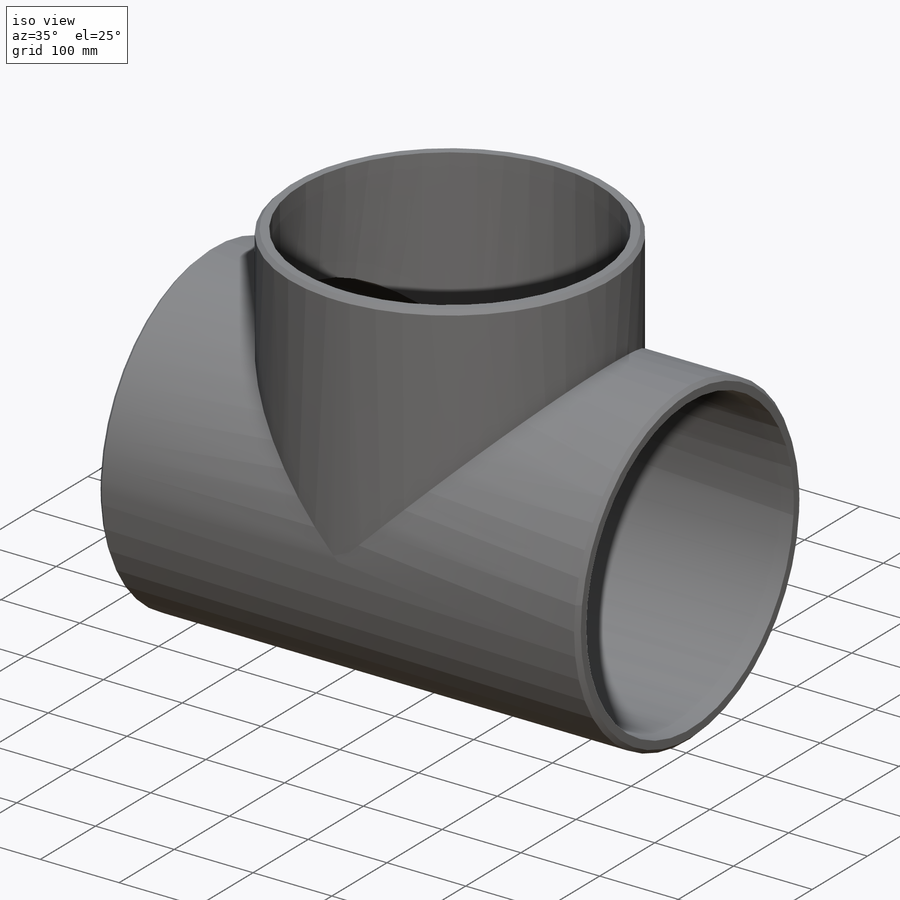
[diagram: iso view]
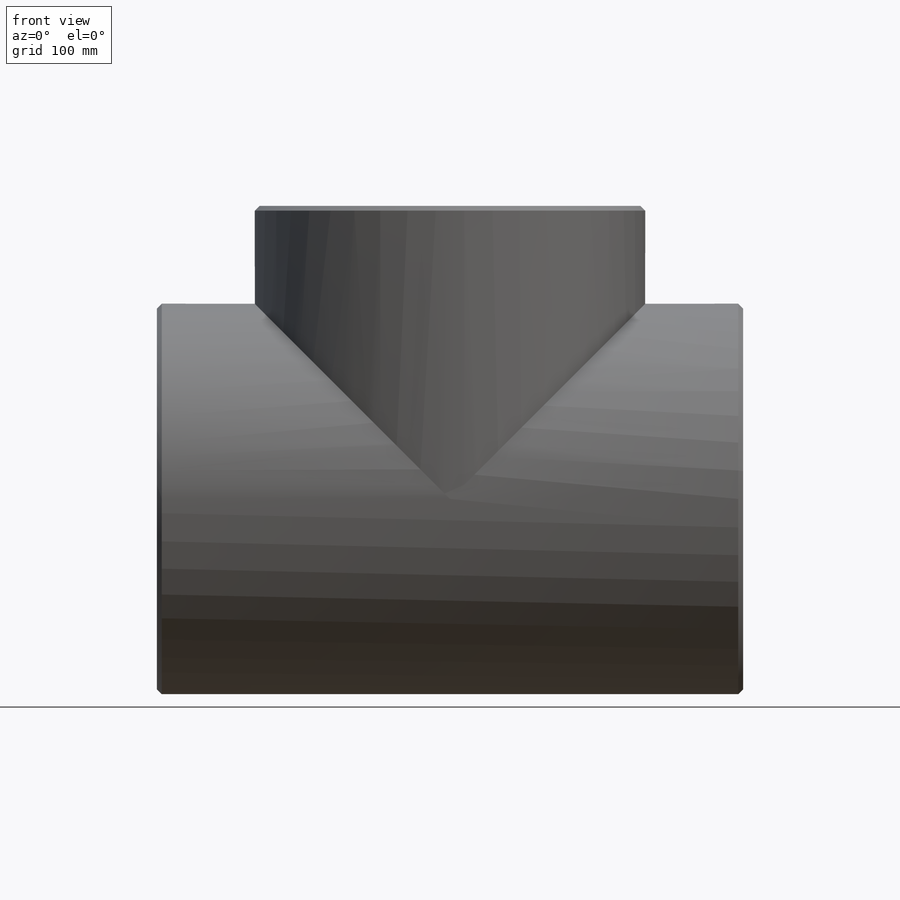
[diagram: front view]
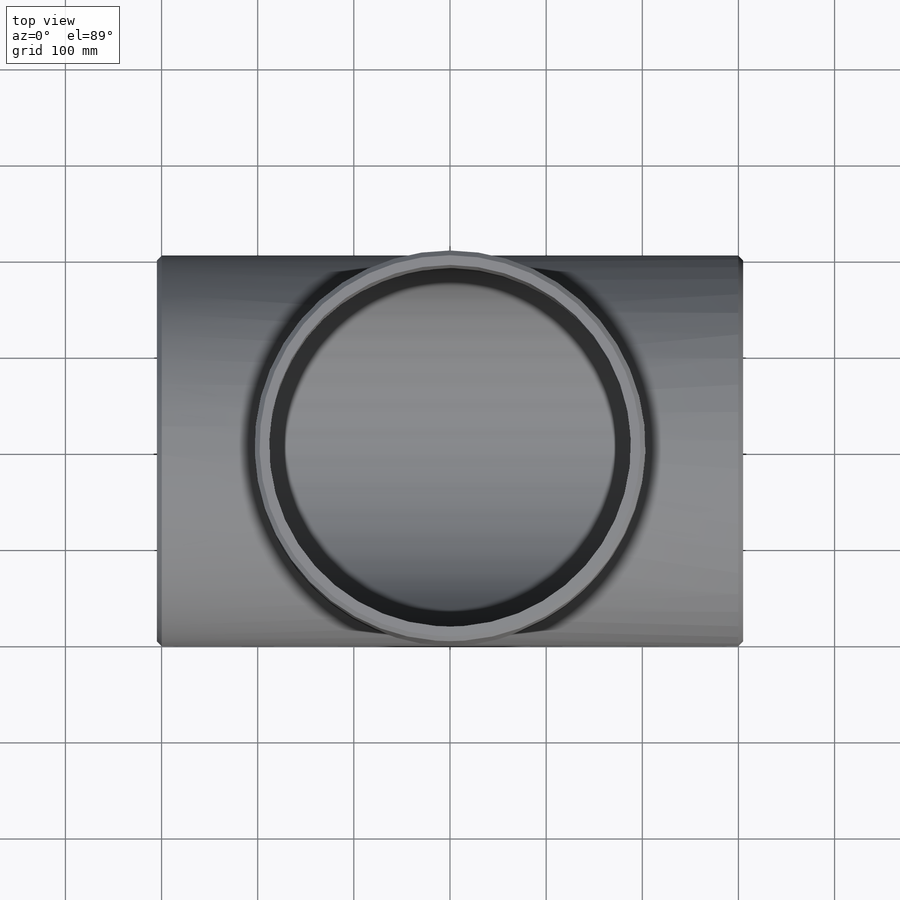
[diagram: top view]
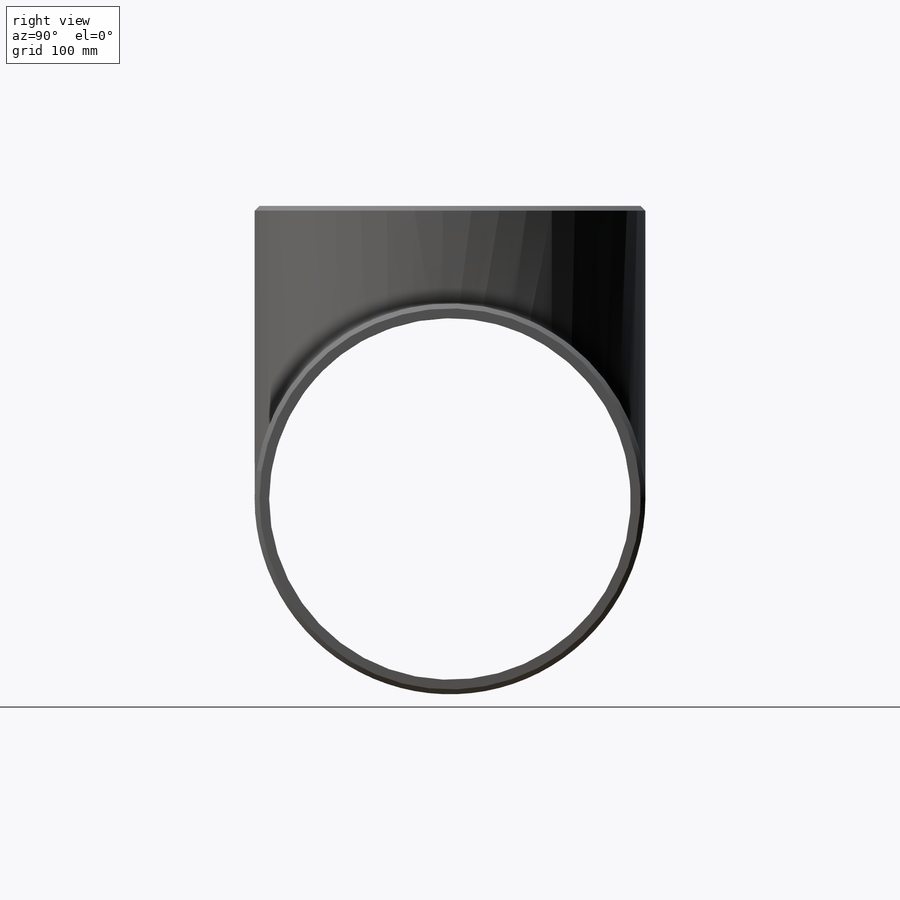
[diagram: right view]
SOLIDWORKS PART (.sldprt)
format: sldprt  version: not decoded by parser v0  size: 586,752 bytes
history: native  units: mm
features: plane x3, sketch x3, shell x3, chamfer x3, extrude x2, material x1, mirror x1 + 1 further entry (+12 scaffold rows collapsed)
feature tree (29):
  scaffold x12  (default folders/planes/origin — collapsed)
  material  "Material <not specified>"
  plane  "front"
  plane  "top"
  plane  "side"
  "Design Table"
  sketch  "RunRoute"  dims[Diameter=219.075mm]
  extrude  "RunExtrude"  Depth=177.8mm Center-to-EndRunC=177.8mm
  mirror  "RunExtrudeMirror"
  sketch  "OutletRoute"  dims[D1=~71.842049mm]
  extrude  "OutletExtrude"  Depth=177.8mm Center-to-EndOutletM=177.8mm
  shell  "TeeShell"  Thickness=8.1788mm WallThickness=8.1788mm
  chamfer  "TeeChamfer"  Distance=2.726267mm Angle=45deg ChamferDistance=2.726267mm ChamferAngle=45deg
  sketch  "Sketch1"  dims[Diameter=203.2mm StubLength=0.0mm]
  shell  "CPoint2"  [1 undecoded]
  chamfer  "Axis2"  Distance=203.2mm Diameter=203.2mm StubLength=0mm
  shell  "CPoint3"  [1 undecoded]
  chamfer  "Axis3"  Distance=203.2mm Diameter=203.2mm StubLength=0mm
decode coverage: 9 of 12 modeling features carry decoded parameters; 1 rows unclassified (native names shown)
note: ~ marks probable driven/reference dimensions
note: 2 parameter values undecoded
note: suppression state not decoded; provenance and decode notes live in map.json
